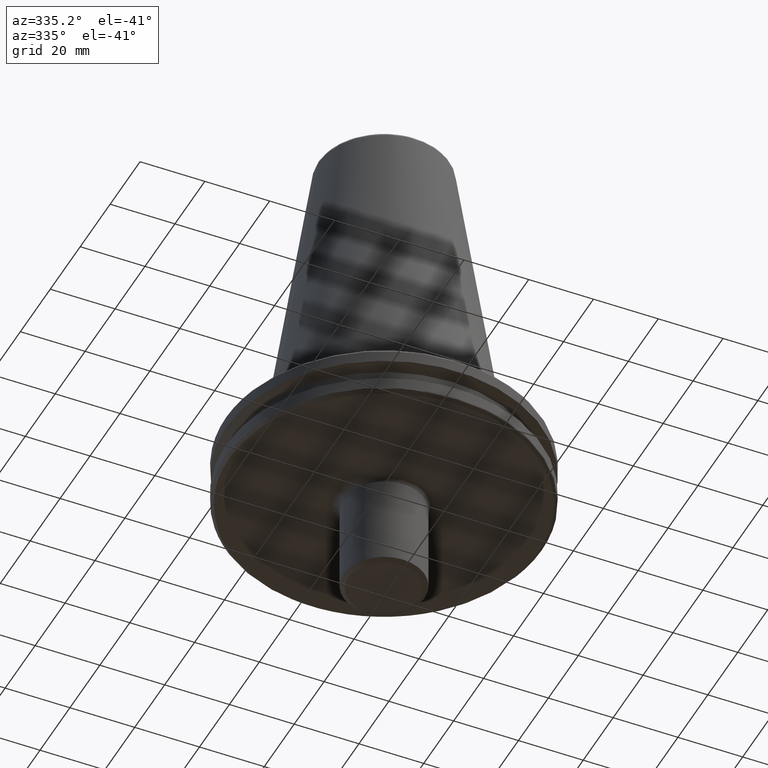
[diagram: clean part render]
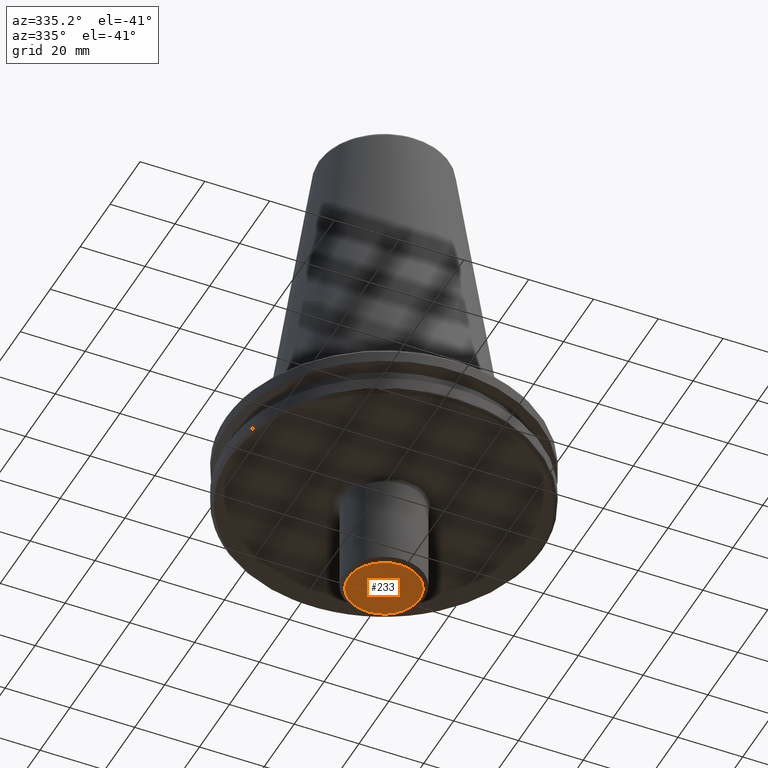
[diagram: same view with one face highlighted and labeled with its STEP entity id]
A machine part, auxiliary view. The second image highlights one B-rep face of the part: STEP entity #233.
In plain terms, the highlighted planar face has unit normal (0, 0, -1).
Its self-contained STEP definition (entity closure, byte-faithful):
#233 = ADVANCED_FACE ( 'NONE', ( #2510 ), #1136, .T. ) ;
#241 = DIRECTION ( 'NONE',  ( 0.0000000000000000000, -2.775557561562891400E-016, 1.000000000000000000 ) ) ;
#371 = VERTEX_POINT ( 'NONE', #842 ) ;
#592 = EDGE_CURVE ( 'NONE', #2839, #371, #2218, .T. ) ;
#842 = CARTESIAN_POINT ( 'NONE',  ( 1.438959988998140400E-015, 11.00000000000000400, -50.00000000000000000 ) ) ;
#1014 = EDGE_LOOP ( 'NONE', ( #2899, #2954 ) ) ;
#1069 = DIRECTION ( 'NONE',  ( -1.000000000000000000, 0.0000000000000000000, -0.0000000000000000000 ) ) ;
#1077 = DIRECTION ( 'NONE',  ( 0.0000000000000000000, 0.0000000000000000000, -1.000000000000000000 ) ) ;
#1097 = CARTESIAN_POINT ( 'NONE',  ( 0.0000000000000000000, -11.00000000000000400, -50.00000000000000000 ) ) ;
#1136 = PLANE ( 'NONE',  #1792 ) ;
#1289 = CARTESIAN_POINT ( 'NONE',  ( 0.0000000000000000000, -11.00000000000000400, -50.00000000000000000 ) ) ;
#1498 = DIRECTION ( 'NONE',  ( 0.0000000000000000000, -1.000000000000000000, 0.0000000000000000000 ) ) ;
#1547 = AXIS2_PLACEMENT_3D ( 'NONE', #1670, #241, #1907 ) ;
#1633 = EDGE_CURVE ( 'NONE', #371, #2839, #2832, .T. ) ;
#1670 = CARTESIAN_POINT ( 'NONE',  ( 0.0000000000000000000, 2.403703357979444300E-016, -50.00000000000000000 ) ) ;
#1791 = CARTESIAN_POINT ( 'NONE',  ( 0.0000000000000000000, 2.403703357979444300E-016, -50.00000000000000000 ) ) ;
#1792 = AXIS2_PLACEMENT_3D ( 'NONE', #1097, #1077, #1069 ) ;
#1907 = DIRECTION ( 'NONE',  ( 0.0000000000000000000, -1.000000000000000000, 0.0000000000000000000 ) ) ;
#1916 = DIRECTION ( 'NONE',  ( 0.0000000000000000000, -2.775557561562891400E-016, 1.000000000000000000 ) ) ;
#2218 = CIRCLE ( 'NONE', #2720, 11.00000000000000400 ) ;
#2510 = FACE_OUTER_BOUND ( 'NONE', #1014, .T. ) ;
#2720 = AXIS2_PLACEMENT_3D ( 'NONE', #1791, #1916, #1498 ) ;
#2832 = CIRCLE ( 'NONE', #1547, 11.00000000000000400 ) ;
#2839 = VERTEX_POINT ( 'NONE', #1289 ) ;
#2899 = ORIENTED_EDGE ( 'NONE', *, *, #592, .F. ) ;
#2954 = ORIENTED_EDGE ( 'NONE', *, *, #1633, .F. ) ;